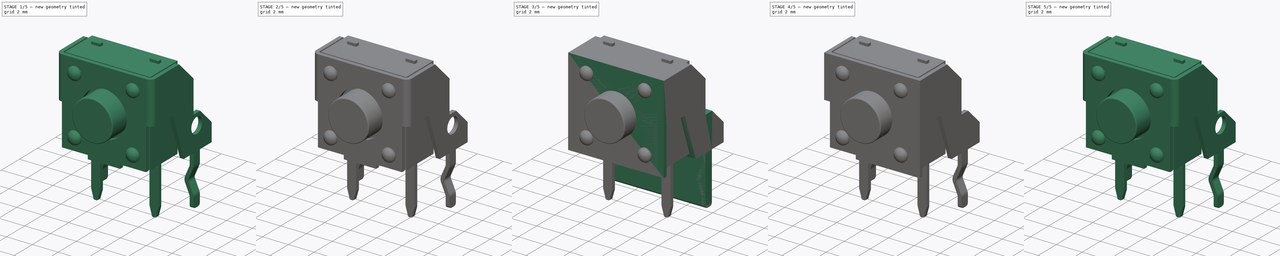
[diagram: build sequence overview — one tinted view per stage of 5, left to right]
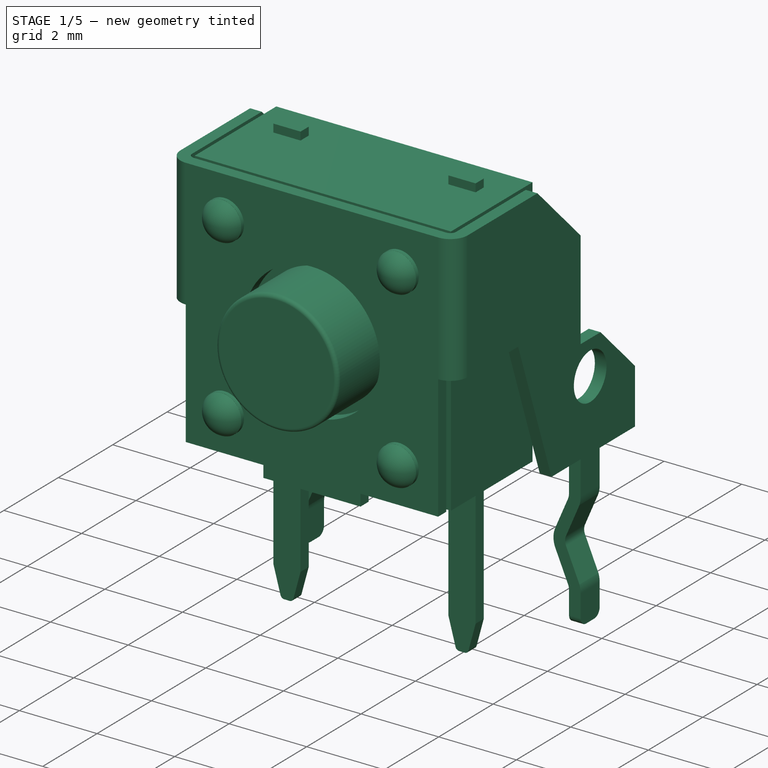
[diagram: stage 1 of 5 — iso view after this stage's code; geometry added in this stage tinted green]
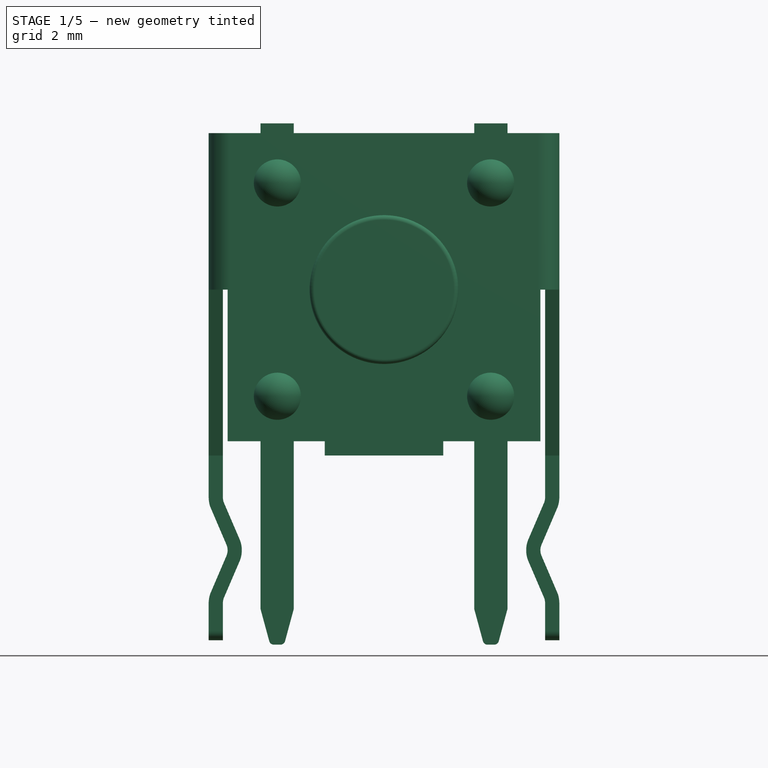
[diagram: stage 1 of 5 — front view after this stage's code; geometry added in this stage tinted green]
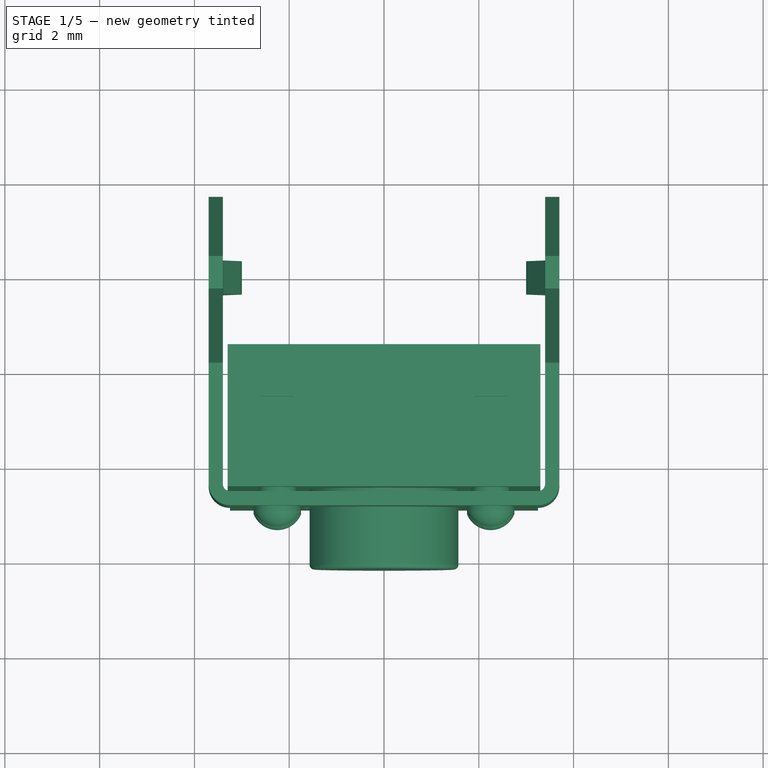
[diagram: stage 1 of 5 — top view after this stage's code; geometry added in this stage tinted green]
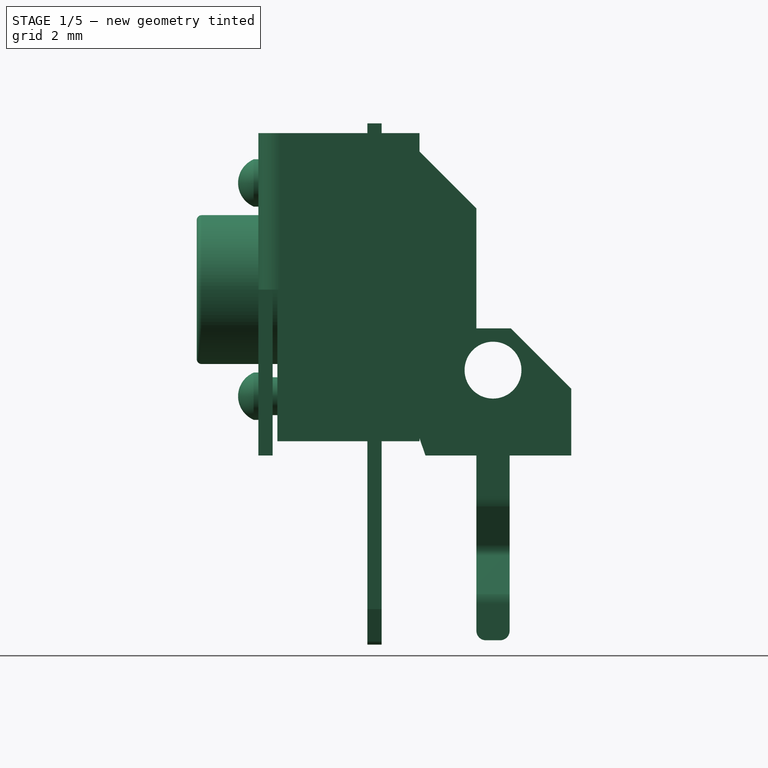
[diagram: stage 1 of 5 — right view after this stage's code; geometry added in this stage tinted green]
FCSTD DOCUMENT  (FreeCAD 0.14R3702 (Git))
Label: pushbutton-right-angle
License: CC-BY 3.0
LicenseURL: http://creativecommons.org/licenses/by/3.0/
objects: Sketcher::SketchObject×11, PartDesign::Pad×6, Part::Feature×6, PartDesign::Pocket×5, App::DocumentObjectGroup×3, Part::MultiFuse×3, PartDesign::Mirrored×2, Part::Fillet×2, Part::Sphere×1, Part::Mirroring×1, Part::Compound×1
note: 49 computed .brp shape members not serialized (recipe doc carries the construction recipe); baked Part::Feature solids carry a one-line shape summary decoded from their .brp

FEATURE [App::DocumentObjectGroup] Group001  label="button-body-src"
  Group = -> [Fusion004,Pad001,Pad003]
FEATURE [Part::Feature] Fusion005  label="button-body001"
  shape: bbox 6.6 x 4.7 x 6.5 mm, 29 faces (baked)
FEATURE [Sketcher::SketchObject] Sketch010  label="front-pin-sketch"
  Placement = pos=(0,-2.35,0) rot=(-1,0,0;4.71239rad)
  sketch-geometry (10):
    g0: LineSegment StartX=-2.60455 StartY=7.00761 StartZ=0 EndX=-1.90455 EndY=7.00761 EndZ=0
    g1: LineSegment StartX=-1.90455 StartY=7.00761 StartZ=0 EndX=-1.90455 EndY=-3.24239 EndZ=0
    g2: LineSegment StartX=-2.60455 StartY=-3.24239 StartZ=0 EndX=-2.60455 EndY=7.00761 EndZ=0
    g3: LineSegment StartX=-2.60455 StartY=-3.24239 StartZ=0 EndX=-2.42106 EndY=-3.91858 EndZ=0
    g4: LineSegment StartX=-2.32455 StartY=-3.99239 StartZ=0 EndX=-2.18455 EndY=-3.99239 EndZ=0
    g5: LineSegment StartX=-2.08804 StartY=-3.91858 StartZ=0 EndX=-1.90455 EndY=-3.24239 EndZ=0
    g6: LineSegment [constr] StartX=-2.60455 StartY=-3.24239 StartZ=0 EndX=-1.90455 EndY=-3.24239 EndZ=0
    g7: LineSegment [constr] StartX=-2.25455 StartY=7.00761 StartZ=0 EndX=-2.25455 EndY=-3.24239 EndZ=0
    g8: ArcOfCircle CenterX=-2.32455 CenterY=-3.89239 CenterZ=0 NormalX=0 NormalY=0 NormalZ=1 Radius=0.1 StartAngle=3.40657 EndAngle=4.71239
    g9: ArcOfCircle CenterX=-2.18455 CenterY=-3.89239 CenterZ=0 NormalX=0 NormalY=0 NormalZ=1 Radius=0.1 StartAngle=4.71239 EndAngle=6.01821
  constraints (25):
    c: Coincident(g0,g1)
    c: Coincident(g2,g0)
    c: Horizontal(g0)
    c: Vertical(g1)
    c: Vertical(g2)
    c: DistanceX(g0) = 0.7
    c: DistanceY(g1) = -10.25
    c: Coincident(g5,g1)
    c: Coincident(g3,g2)
    c: Horizontal(g4)
    c: Horizontal(g6)
    c: Coincident(g2,g6)
    c: Coincident(g6,g1)
    c: PointOnObject(g7,g0)
    c: PointOnObject(g7,g6)
    c: Symmetric(g0,g0,g7)
    c: Tangent(g3,g8)
    c: Tangent(g4,g8)
    c: Radius(g8) = 0.1
    c: Tangent(g4,g9)
    c: Tangent(g5,g9)
    c: Equal(g9,g8)
    c: DistanceX(g4) = 0.14
    c: Symmetric(g4,g4,g7)
    c: DistanceY(g4,g1) = 0.75
FEATURE [PartDesign::Pad] Pad005  label="font-left-pin"
  Length = 0.3
  Length2 = 100
  Placement = pos=(0,-2.35,0) rot=(-1,0,0;4.71239rad)
  Sketch = -> Sketch010
  Type = 0
FEATURE [Part::Mirroring] Part__Mirroring  label="font-left-pin (Mirror #1)"
  Base = (0,0,0)
  Normal = (1,0,0)
  Source = -> Pad005
FEATURE [Part::MultiFuse] Fusion006  label="front-pins"
  Shapes = -> [Part__Mirroring,Pad005]
FEATURE [App::DocumentObjectGroup] Group002  label="pins-src"
  Group = -> [Part__Mirroring,Fusion006]
FEATURE [Part::Feature] Fusion007  label="front-pins001"
  shape: bbox 5.209 x 0.3 x 11 mm, 20 faces, 2 solids (baked)
FEATURE [Part::Compound] Compound  label="pushbutton-right-angle"
  Links = -> [Pocket004001,Fusion005,Fusion007]
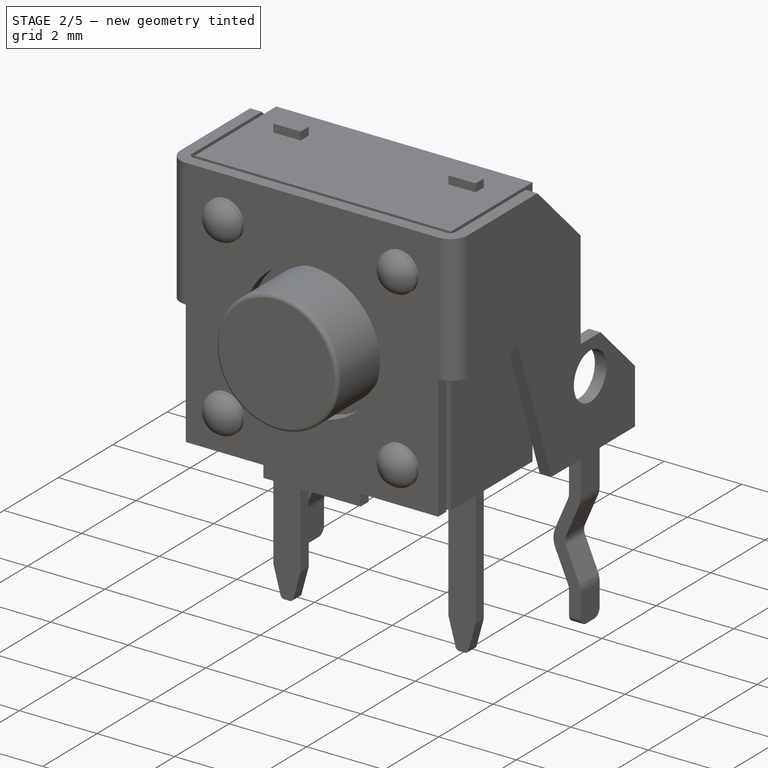
[diagram: stage 2 of 5 — iso view after this stage's code; geometry added in this stage tinted green]
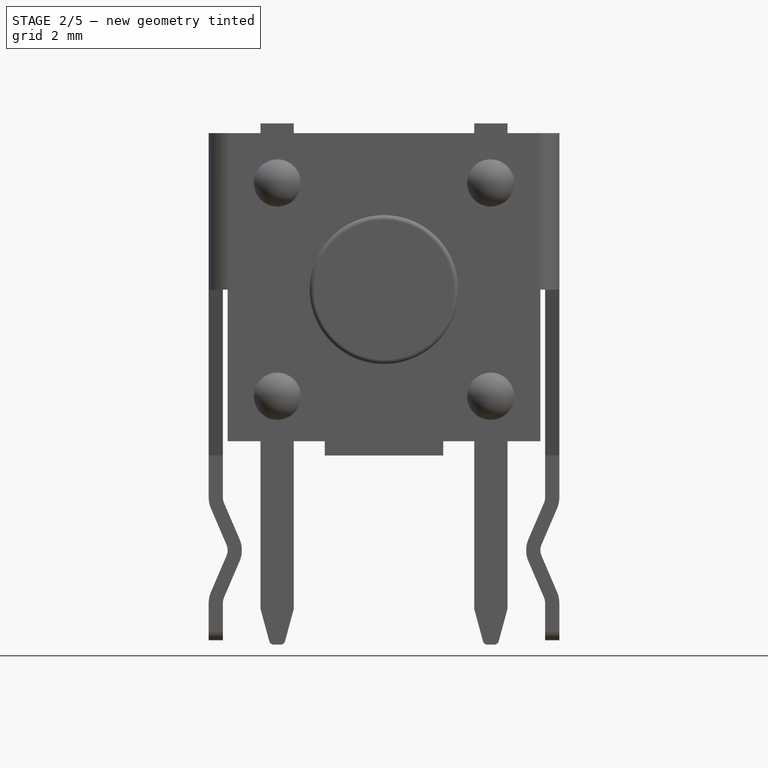
[diagram: stage 2 of 5 — front view after this stage's code; geometry added in this stage tinted green]
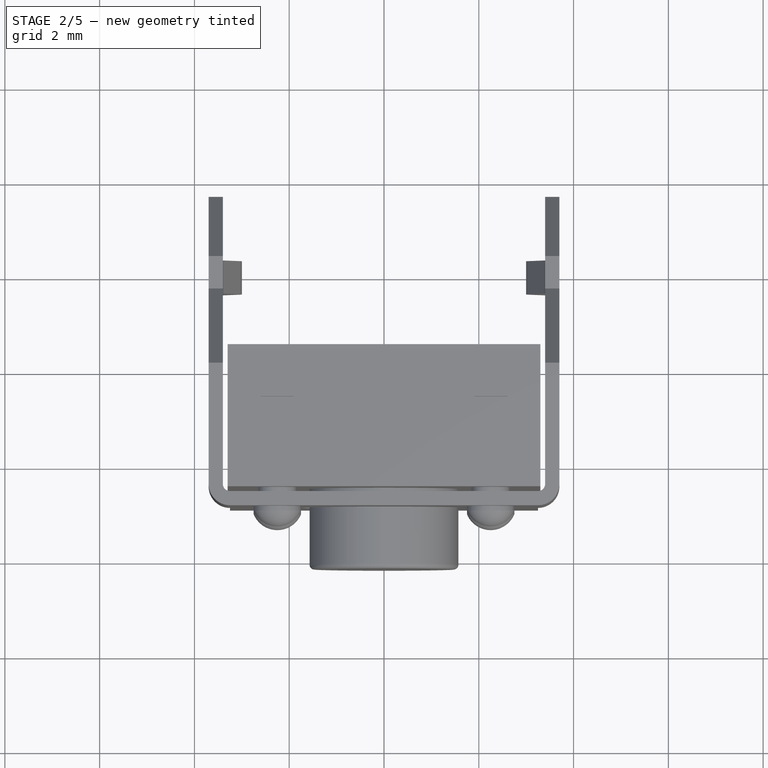
[diagram: stage 2 of 5 — top view after this stage's code; geometry added in this stage tinted green]
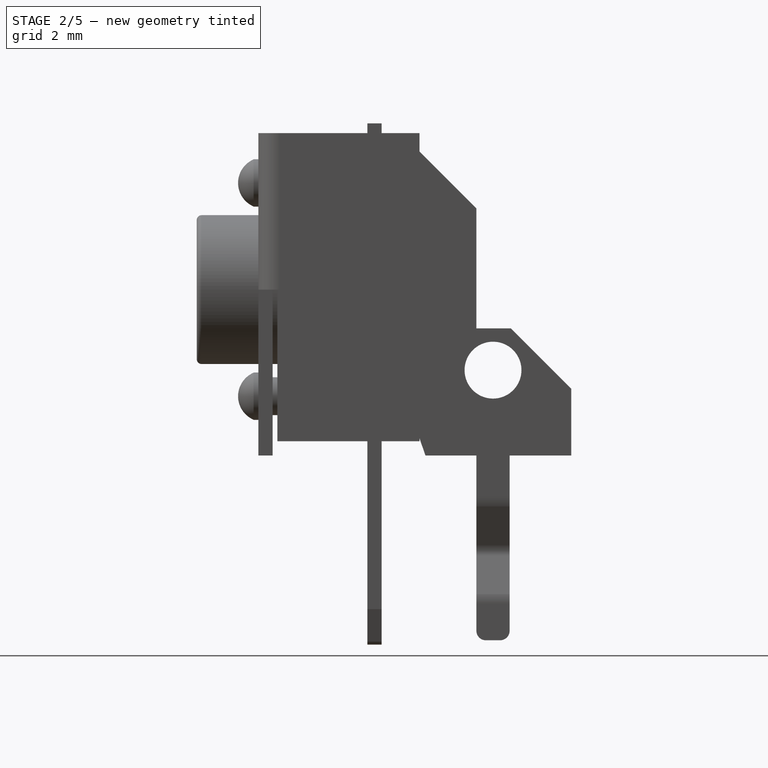
[diagram: stage 2 of 5 — right view after this stage's code; geometry added in this stage tinted green]
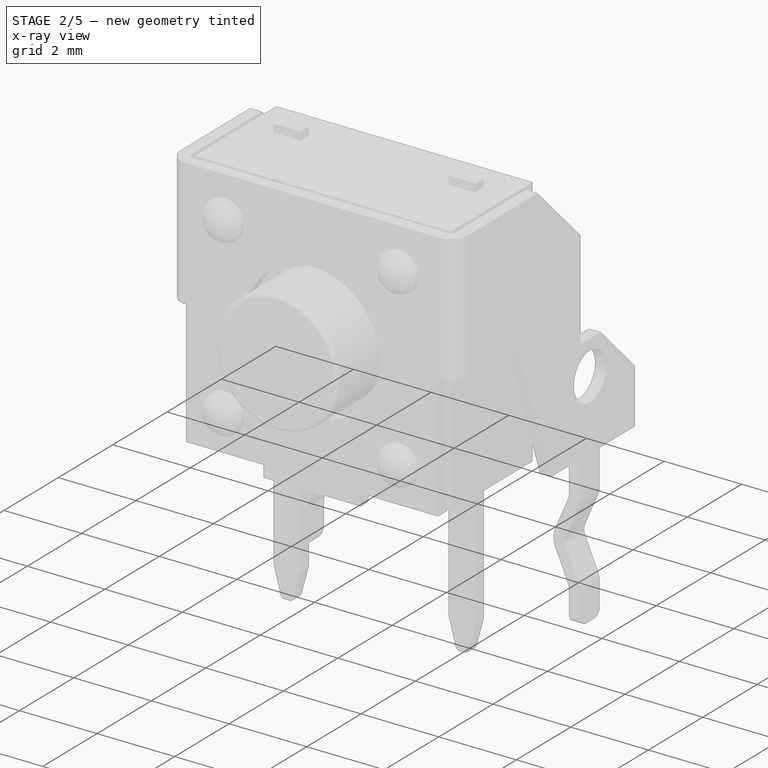
[diagram: stage 2 of 5 — x-ray composite at the iso view; earlier geometry ghosted, this stage's added geometry solid]
FEATURE [Sketcher::SketchObject] Sketch008  label="pin-A-sketch"
  Placement = pos=(0,0,0) rot=(-1,0,0;4.71239rad)
  sketch-geometry (1):
    g0: Circle CenterX=0 CenterY=0 CenterZ=0 NormalX=0 NormalY=0 NormalZ=1 Radius=0.4
  constraints (2):
    c: Coincident(g0,g-1)
    c: Radius(g0) = 0.4
FEATURE [PartDesign::Pad] Pad003  label="pin-A"
  Length = 0.1
  Length2 = 100
  Placement = pos=(0,0,0) rot=(-1,0,0;4.71239rad)
  Sketch = -> Sketch008
  Type = 0
FEATURE [Sketcher::SketchObject] Sketch009  label="pin-B-sketch"
  Placement = pos=(0,-0.1,0) rot=(1,0,0;1.5708rad)
  Support = -> Pad003 [Face3]
  sketch-geometry (1):
    g0: Circle CenterX=0 CenterY=0 CenterZ=0 NormalX=0 NormalY=0 NormalZ=1 Radius=0.5
  constraints (2):
    c: Coincident(g-1,g0)
    c: Radius(g0) = 0.5
FEATURE [PartDesign::Pad] Pad004  label="pin-B"
  Length = 0.4
  Length2 = 100
  Placement = pos=(0,0,0) rot=(-1,0,0;4.71239rad)
  Sketch = -> Sketch009
  Type = 0
FEATURE [Part::Sphere] Sphere
  Angle1 = 23
  Angle2 = 90
  Angle3 = 360
  Placement = pos=(0,-0.289005,0) rot=(1,0,0;1.5708rad)
  Radius = 0.54
FEATURE [Part::MultiFuse] Fusion  label="pin"
  Placement = pos=(2.25,-4.55,1.25) rot=(0,0,1;0rad)
  Shapes = -> [Pad004,Sphere]
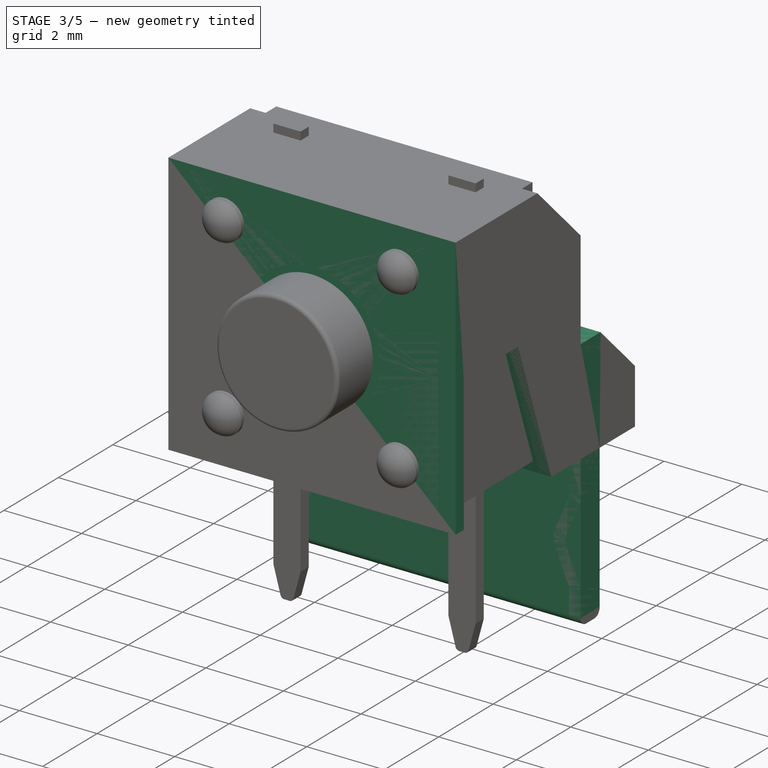
[diagram: stage 3 of 5 — iso view after this stage's code; geometry added in this stage tinted green]
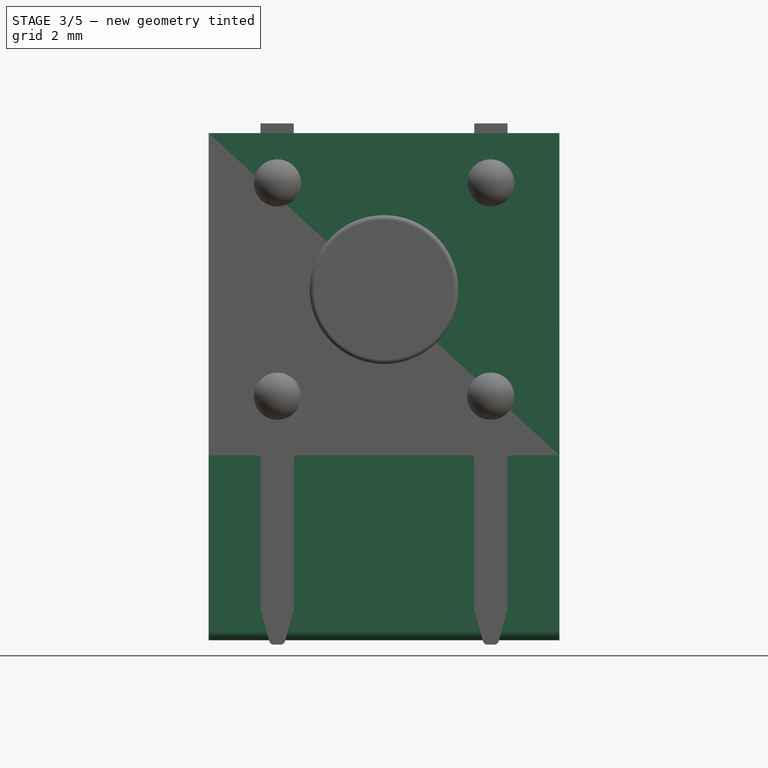
[diagram: stage 3 of 5 — front view after this stage's code; geometry added in this stage tinted green]
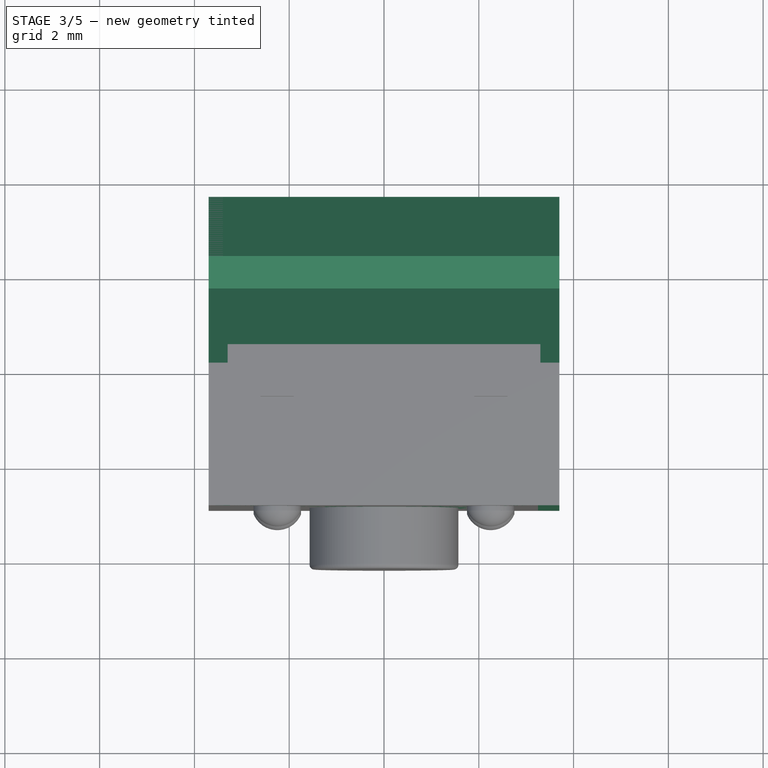
[diagram: stage 3 of 5 — top view after this stage's code; geometry added in this stage tinted green]
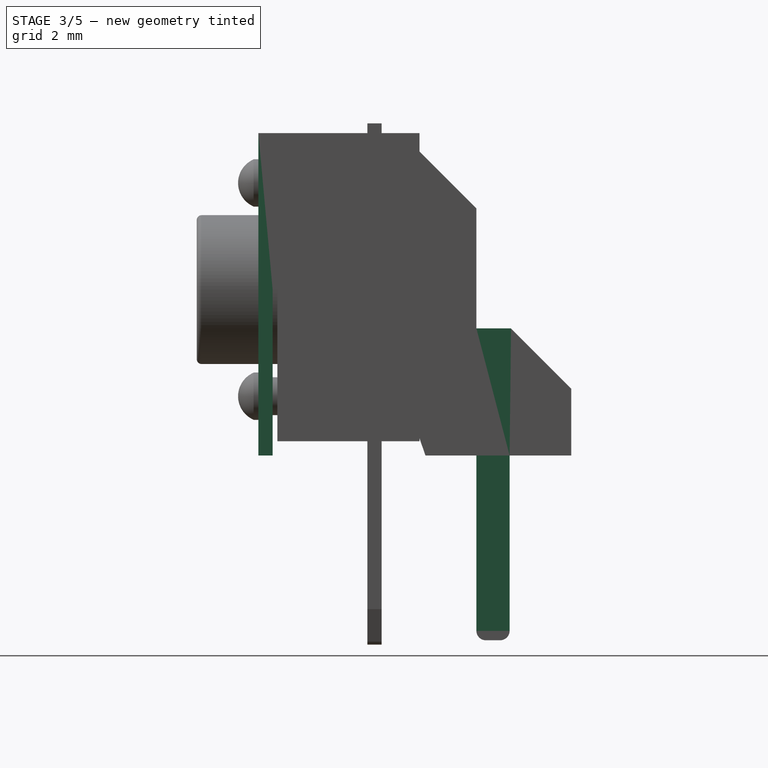
[diagram: stage 3 of 5 — right view after this stage's code; geometry added in this stage tinted green]
FEATURE [Sketcher::SketchObject] Sketch  label="metalic-cover-main-sketch"
  Placement = pos=(0,0,0) rot=(0.57735,0.57735,0.57735;2.0944rad)
  sketch-geometry (22):
    g0: LineSegment StartX=-4.95 StartY=0 StartZ=0 EndX=-4.95 EndY=6.8 EndZ=0
    g1: LineSegment StartX=-4.95 StartY=6.8 StartZ=0 EndX=-1.94 EndY=6.8 EndZ=0
    g2: LineSegment StartX=-1.94 StartY=6.8 StartZ=0 EndX=-0.35 EndY=5.21 EndZ=0
    g3: LineSegment StartX=-0.35 StartY=5.21 StartZ=0 EndX=-0.35 EndY=2.68 EndZ=0
    g4: LineSegment StartX=-0.35 StartY=2.68 StartZ=0 EndX=0.38 EndY=2.68 EndZ=0
    g5: LineSegment StartX=0.38 StartY=2.68 StartZ=0 EndX=1.65 EndY=1.41 EndZ=0
    g6: LineSegment StartX=1.65 StartY=1.41 StartZ=0 EndX=1.65 EndY=0 EndZ=0
    g7: LineSegment StartX=1.65 StartY=0 StartZ=0 EndX=0.35 EndY=0 EndZ=0
    g8: LineSegment StartX=0.35 StartY=0 StartZ=0 EndX=0.35 EndY=-3.7 EndZ=0
    g9: LineSegment StartX=0.15 StartY=-3.9 StartZ=0 EndX=-0.15 EndY=-3.9 EndZ=0
    g10: LineSegment StartX=-0.35 StartY=-3.7 StartZ=0 EndX=-0.35 EndY=0 EndZ=0
    g11: LineSegment StartX=-0.35 StartY=0 StartZ=0 EndX=-1.425 EndY=0 EndZ=0
    g12: LineSegment StartX=-1.425 StartY=0 StartZ=0 EndX=-2.65 EndY=3.5 EndZ=0
    g13: LineSegment StartX=-2.65 StartY=3.5 StartZ=0 EndX=-4.65 EndY=3.5 EndZ=0
    g14: LineSegment StartX=-4.65 StartY=3.5 StartZ=0 EndX=-4.65 EndY=0 EndZ=0
    g15: LineSegment StartX=-4.65 StartY=0 StartZ=0 EndX=-4.95 EndY=0 EndZ=0
    g16: LineSegment [constr] StartX=-1.94 StartY=5.21 StartZ=0 EndX=-0.35 EndY=5.21 EndZ=0
    g17: LineSegment [constr] StartX=-1.94 StartY=6.8 StartZ=0 EndX=-1.94 EndY=5.21 EndZ=0
    g18: LineSegment [constr] StartX=0.38 StartY=2.68 StartZ=0 EndX=0.38 EndY=1.41 EndZ=0
    g19: LineSegment [constr] StartX=0.38 StartY=1.41 StartZ=0 EndX=1.65 EndY=1.41 EndZ=0
    g20: ArcOfCircle CenterX=0.15 CenterY=-3.7 CenterZ=0 NormalX=0 NormalY=0 NormalZ=1 Radius=0.2 StartAngle=4.71239 EndAngle=6.28319
    g21: ArcOfCircle CenterX=-0.15 CenterY=-3.7 CenterZ=0 NormalX=0 NormalY=0 NormalZ=1 Radius=0.2 StartAngle=3.14159 EndAngle=4.71239
  constraints (61):
    c: Coincident(g0,g1)
    c: Horizontal(g1)
    c: Coincident(g1,g2)
    c: Coincident(g2,g3)
    c: Vertical(g3)
    c: Coincident(g3,g4)
    c: Horizontal(g4)
    c: Coincident(g4,g5)
    c: Coincident(g5,g6)
    c: Coincident(g6,g7)
    c: Horizontal(g7)
    c: Coincident(g7,g8)
    c: Vertical(g8)
    c: Horizontal(g9)
    c: Vertical(g10)
    c: Coincident(g10,g11)
    c: Horizontal(g11)
    c: Coincident(g11,g12)
    c: Coincident(g12,g13)
    c: Horizontal(g13)
    c: Coincident(g13,g14)
    c: Vertical(g14)
    c: Coincident(g14,g15)
    c: Coincident(g15,g0)
    c: Vertical(g0)
    c: Horizontal(g15)
    c: Vertical(g6)
    c: PointOnObject(g10,g-1)
    c: PointOnObject(g14,g-1)
    c: DistanceY(g0) = 6.8
    c: Horizontal(g16)
    c: Coincident(g16,g2)
    c: Vertical(g17)
    c: Coincident(g17,g16)
    c: Coincident(g17,g1)
    c: Equal(g16,g17)
    c: DistanceX(g0,g2) = 4.6
    c: DistanceX(g15) = -0.3
    c: DistanceX(g13) = -2
    c: DistanceX(g11) = -1.075
    c: DistanceX(g11,g12) = -1.225
    c: DistanceY(g11,g12) = 3.5
    c: Symmetric(g10,g7,g-2)
    c: DistanceX(g10,g7) = 0.7
    c: DistanceX(g7) = -1.3
    c: DistanceX(g16) = 1.59
    c: DistanceY(g3) = -2.53
    c: DistanceX(g4) = 0.73
    c: Vertical(g18)
    c: Coincident(g18,g4)
    c: Horizontal(g19)
    c: Coincident(g19,g18)
    c: Coincident(g19,g5)
    c: Equal(g18,g19)
    c: Tangent(g8,g20)
    c: Tangent(g9,g20)
    c: Tangent(g9,g21)
    c: Tangent(g10,g21)
    c: Equal(g20,g21)
    c: DistanceY(g9,g7) = 3.9
    c: Radius(g20) = 0.2
FEATURE [PartDesign::Pad] Pad  label="metalic-cover-main"
  Length = 7.4
  Length2 = 100
  Midplane = true
  Placement = pos=(0,0,0) rot=(0.57735,0.57735,0.57735;2.0944rad)
  Sketch = -> Sketch
  Type = 0
FEATURE [App::DocumentObjectGroup] Group  label="metal-cover-src"
  Group = -> [Pad,Pocket,Pocket001,Mirrored,Pocket002,Mirrored001,Fillet,Pocket004]
FEATURE [Part::Feature] Pocket004001  label="metal-cover"
  shape: bbox 7.4 x 6.6 x 10.7 mm, 73 faces (baked)
FEATURE [Sketcher::SketchObject] Sketch006  label="main-body-sketch"
  Placement = pos=(0,-1.55,0) rot=(-1,0,0;4.71239rad)
  sketch-geometry (4):
    g0: LineSegment StartX=-3.3 StartY=0.3 StartZ=0 EndX=3.3 EndY=0.3 EndZ=0
    g1: LineSegment StartX=3.3 StartY=0.3 StartZ=0 EndX=3.3 EndY=6.8 EndZ=0
    g2: LineSegment StartX=3.3 StartY=6.8 StartZ=0 EndX=-3.3 EndY=6.8 EndZ=0
    g3: LineSegment StartX=-3.3 StartY=6.8 StartZ=0 EndX=-3.3 EndY=0.3 EndZ=0
  constraints (12):
    c: Coincident(g0,g1)
    c: Coincident(g1,g2)
    c: Coincident(g2,g3)
    c: Coincident(g3,g0)
    c: Horizontal(g0)
    c: Horizontal(g2)
    c: Vertical(g1)
    c: Vertical(g3)
    c: Symmetric(g0,g0,g-2)
    c: DistanceX(g0) = 6.6
    c: DistanceY(g1) = 6.5
    c: DistanceY(g-1,g0) = 0.3
FEATURE [PartDesign::Pad] Pad001  label="main-body"
  Length = 3
  Length2 = 100
  Placement = pos=(0,-1.55,0) rot=(-1,0,0;4.71239rad)
  Sketch = -> Sketch006
  Type = 0
FEATURE [Sketcher::SketchObject] Sketch007  label="button-sketch"
  Placement = pos=(0,-4.55,0) rot=(1,0,0;1.5708rad)
  Support = -> Pad001 [Face6]
  sketch-geometry (1):
    g0: Circle CenterX=0 CenterY=3.5 CenterZ=0 NormalX=0 NormalY=0 NormalZ=1 Radius=1.57
  constraints (3):
    c: PointOnObject(g0,g-2)
    c: Radius(g0) = 1.57
    c: DistanceY(g-1,g0) = 3.5
FEATURE [PartDesign::Pad] Pad002  label="button"
  Length = 1.7
  Length2 = 100
  Placement = pos=(0,-1.55,0) rot=(-1,0,0;4.71239rad)
  Sketch = -> Sketch007
  Type = 0
FEATURE [Part::Fillet] Fillet001
  Base = -> Pad002
  Edges = 1 edges r=0.1: [Edge15]
FEATURE [Part::Feature] Fusion001  label="pin001"
  Placement = pos=(-2.25,-4.55,1.25) rot=(0,0,1;0rad)
  shape: bbox 1 x 0.829 x 1 mm, 6 faces (baked)
FEATURE [Part::Feature] Fusion002  label="pin002"
  Placement = pos=(-2.25,-4.55,5.75) rot=(0,0,1;0rad)
  shape: bbox 1 x 0.829 x 1 mm, 6 faces (baked)
FEATURE [Part::Feature] Fusion003  label="pin003"
  Placement = pos=(2.25,-4.55,5.75) rot=(0,0,1;0rad)
  shape: bbox 1 x 0.829 x 1 mm, 6 faces (baked)
FEATURE [Part::MultiFuse] Fusion004  label="button-body"
  Shapes = -> [Fusion,Fusion001,Fusion002,Fusion003,Fillet001]
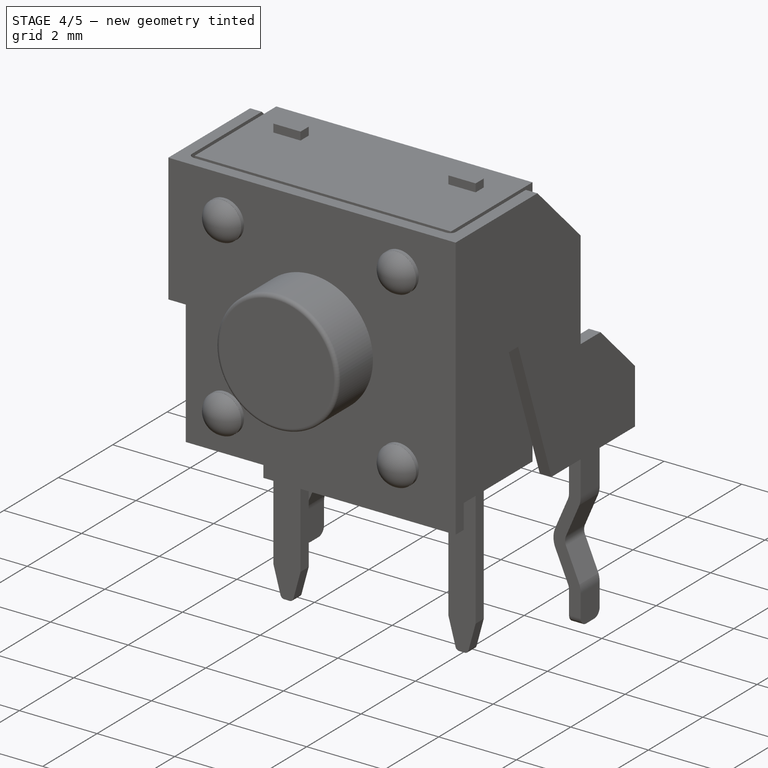
[diagram: stage 4 of 5 — iso view after this stage's code; geometry added in this stage tinted green]
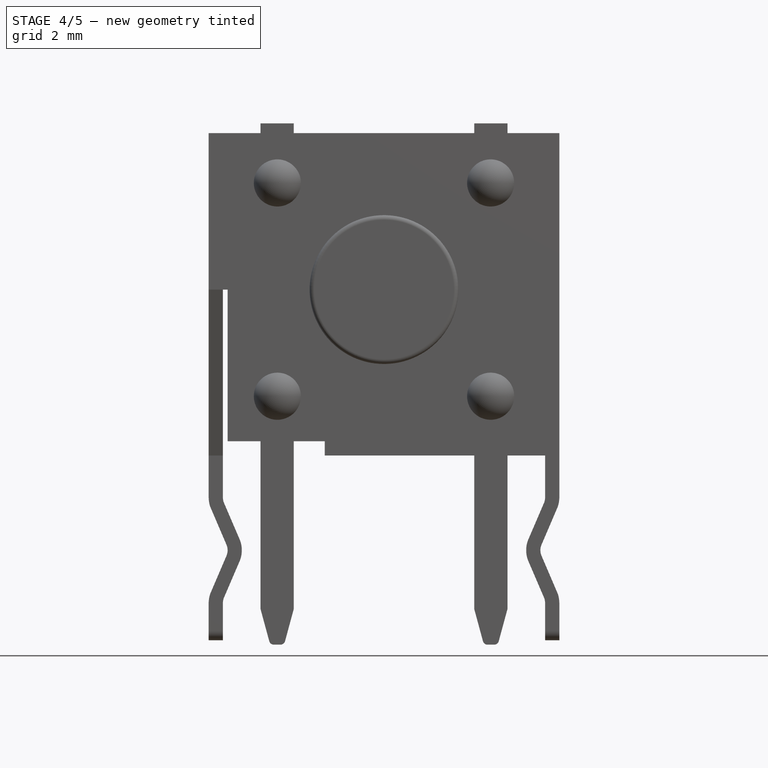
[diagram: stage 4 of 5 — front view after this stage's code; geometry added in this stage tinted green]
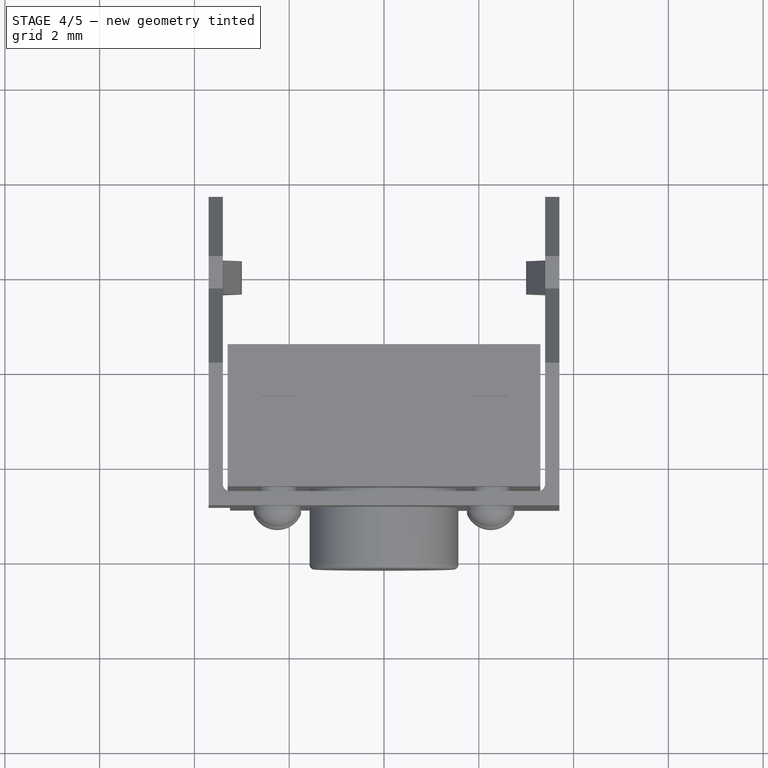
[diagram: stage 4 of 5 — top view after this stage's code; geometry added in this stage tinted green]
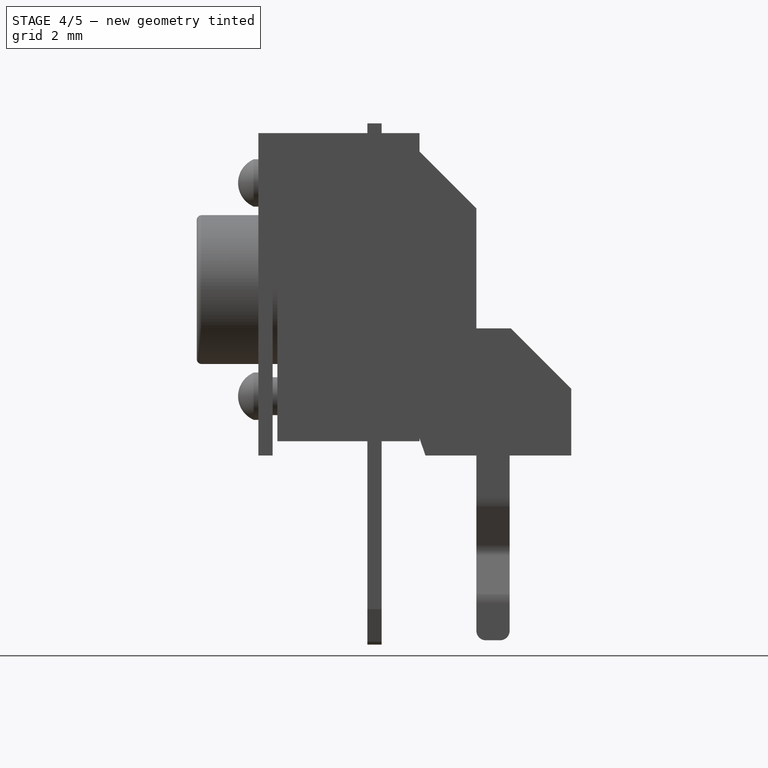
[diagram: stage 4 of 5 — right view after this stage's code; geometry added in this stage tinted green]
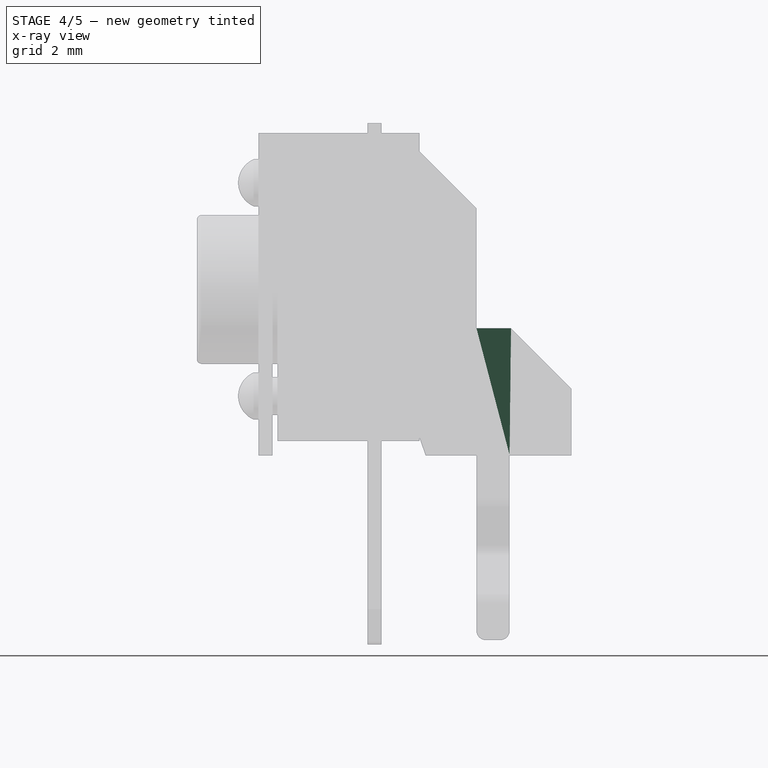
[diagram: stage 4 of 5 — x-ray composite at the right view; earlier geometry ghosted, this stage's added geometry solid]
FEATURE [Sketcher::SketchObject] Sketch001  label="metal-cover-top-cutout-1-sketch"
  ExternalGeometry = -> [Pad]
  Placement = pos=(0,0,6.8) rot=(0,0,-1;1.5708rad)
  Support = -> Pad [Face8]
  sketch-geometry (14):
    g0: LineSegment StartX=-2.38 StartY=-3.4 StartZ=0 EndX=-0.35 EndY=-3.4 EndZ=0
    g1: LineSegment StartX=4.65 StartY=-3.25 StartZ=0 EndX=4.65 EndY=3.25 EndZ=0
    g2: LineSegment StartX=4.5 StartY=3.4 StartZ=0 EndX=0.35 EndY=3.4 EndZ=0
    g3: LineSegment StartX=-2.38 StartY=3.4 StartZ=0 EndX=-2.38 EndY=-3.4 EndZ=0
    g4: ArcOfCircle CenterX=4.5 CenterY=3.25 CenterZ=0 NormalX=0 NormalY=0 NormalZ=1 Radius=0.15 StartAngle=0 EndAngle=1.5708
    g5: LineSegment StartX=0.35 StartY=3.4 StartZ=0 EndX=0.35 EndY=3 EndZ=0
    g6: LineSegment StartX=0.35 StartY=3 StartZ=0 EndX=-0.38 EndY=3 EndZ=0
    g7: LineSegment StartX=-0.38 StartY=3 StartZ=0 EndX=-0.38 EndY=3.4 EndZ=0
    g8: LineSegment StartX=-0.38 StartY=3.4 StartZ=0 EndX=-2.38 EndY=3.4 EndZ=0
    g9: ArcOfCircle CenterX=4.5 CenterY=-3.25 CenterZ=0 NormalX=0 NormalY=0 NormalZ=1 Radius=0.15 StartAngle=4.71239 EndAngle=6.28319
    g10: LineSegment StartX=-0.35 StartY=-3 StartZ=0 EndX=0.35 EndY=-3 EndZ=0
    g11: LineSegment StartX=0.35 StartY=-3 StartZ=0 EndX=0.35 EndY=-3.4 EndZ=0
    g12: LineSegment StartX=-0.35 StartY=-3.4 StartZ=0 EndX=-0.35 EndY=-3 EndZ=0
    g13: LineSegment StartX=0.35 StartY=-3.4 StartZ=0 EndX=4.5 EndY=-3.4 EndZ=0
  constraints (37):
    c: Coincident(g8,g3)
    c: Coincident(g3,g0)
    c: Horizontal(g0)
    c: Horizontal(g2)
    c: Vertical(g1)
    c: Vertical(g3)
    c: Symmetric(g0,g8,g-1)
    c: Tangent(g1,g4)
    c: Tangent(g2,g4)
    c: Radius(g4) = 0.15
    c: PointOnObject(g1,g-3)
    c: DistanceY(g2,g-3) = 0.3
    c: Coincident(g5,g6)
    c: Coincident(g6,g7)
    c: Horizontal(g6)
    c: Vertical(g5)
    c: Vertical(g7)
    c: Coincident(g2,g5)
    c: Coincident(g8,g7)
    c: Tangent(g2,g8)
    c: PointOnObject(g2,g-4)
    c: PointOnObject(g7,g-5)
    c: DistanceY(g2,g5) = -0.4
    c: DistanceX(g8) = -2
    c: Tangent(g13,g9)
    c: Tangent(g1,g9)
    c: Equal(g9,g4)
    c: Coincident(g10,g11)
    c: Coincident(g12,g10)
    c: Horizontal(g10)
    c: Vertical(g11)
    c: Vertical(g12)
    c: Symmetric(g10,g5,g-1)
    c: Coincident(g0,g12)
    c: Coincident(g13,g11)
    c: Tangent(g0,g13)
    c: Symmetric(g10,g10,g-2)
FEATURE [PartDesign::Pocket] Pocket  label="metal-cover-top-cutout-1"
  Length = 5
  Placement = pos=(0,0,0) rot=(0.57735,0.57735,0.57735;2.0944rad)
  Sketch = -> Sketch001
  Type = 1
FEATURE [Sketcher::SketchObject] Sketch002  label="metal-cover-pins-cutout-2-sketch"
  ExternalGeometry = -> [Pocket]
  Placement = pos=(0,0.35,0) rot=(0.57735,0.57735,0.57735;4.18879rad)
  Support = -> Pocket [Face33]
  sketch-geometry (25):
    g0: LineSegment StartX=-4.2 StartY=3.4 StartZ=0 EndX=-3.13 EndY=3.4 EndZ=0
    g1: LineSegment [constr] StartX=2.68 StartY=3 StartZ=0 EndX=-4.2 EndY=3 EndZ=0
    g2: LineSegment StartX=-4.2 StartY=3 StartZ=0 EndX=-4.2 EndY=3.4 EndZ=0
    g3: ArcOfCircle CenterX=-3.13 CenterY=3 CenterZ=0 NormalX=0 NormalY=0 NormalZ=1 Radius=0.4 StartAngle=1.27409 EndAngle=1.5708
    g4: LineSegment [constr] StartX=-3.13 StartY=3.4 StartZ=0 EndX=-3.13 EndY=3 EndZ=0
    g5: ArcOfCircle CenterX=-2 CenterY=3.6 CenterZ=0 NormalX=0 NormalY=0 NormalZ=1 Radius=0.6 StartAngle=4.29351 EndAngle=5.13127
    g6: LineSegment [constr] StartX=-2 StartY=3.6 StartZ=0 EndX=-2 EndY=3 EndZ=0
    g7: LineSegment StartX=-3.01305 StartY=3.38252 StartZ=0 EndX=-2.24404 EndY=3.05187 EndZ=0
    g8: LineSegment [constr] StartX=-2 StartY=3.6 StartZ=0 EndX=-2.24404 EndY=3.05187 EndZ=0
    g9: LineSegment [constr] StartX=-3.01305 StartY=3.38252 StartZ=0 EndX=-3.13 EndY=3 EndZ=0
    g10: ArcOfCircle CenterX=-0.87 CenterY=3 CenterZ=0 NormalX=0 NormalY=0 NormalZ=1 Radius=0.4 StartAngle=1.5708 EndAngle=1.8675
    g11: LineSegment StartX=-1.75596 StartY=3.05187 StartZ=0 EndX=-0.986949 EndY=3.38252 EndZ=0
    g12: LineSegment StartX=-0.87 StartY=3.4 StartZ=0 EndX=2.68 EndY=3.4 EndZ=0
    g13: LineSegment StartX=2.98 StartY=2.7 StartZ=0 EndX=-4.2 EndY=2.7 EndZ=0
    g14: LineSegment StartX=-4.2 StartY=2.7 StartZ=0 EndX=-4.2 EndY=3 EndZ=0
    g15: LineSegment StartX=2.68 StartY=3.4 StartZ=0 EndX=2.98 EndY=3.4 EndZ=0
    g16: LineSegment StartX=2.98 StartY=3.4 StartZ=0 EndX=2.98 EndY=2.7 EndZ=0
    g17: ArcOfCircle CenterX=-3.13 CenterY=3 CenterZ=0 NormalX=0 NormalY=0 NormalZ=1 Radius=0.7 StartAngle=1.27409 EndAngle=1.5708
    g18: ArcOfCircle CenterX=-2 CenterY=3.6 CenterZ=0 NormalX=0 NormalY=0 NormalZ=1 Radius=0.3 StartAngle=4.29351 EndAngle=5.13127
    g19: ArcOfCircle CenterX=-0.87 CenterY=3 CenterZ=0 NormalX=0 NormalY=0 NormalZ=1 Radius=0.7 StartAngle=1.5708 EndAngle=1.8675
    g20: LineSegment StartX=-2.92534 StartY=3.66941 StartZ=0 EndX=-2.12202 EndY=3.32594 EndZ=0
    g21: LineSegment StartX=-1.87798 StartY=3.32594 StartZ=0 EndX=-1.07466 EndY=3.66941 EndZ=0
    g22: LineSegment StartX=-3.13 StartY=3.9 StartZ=0 EndX=-0.87 EndY=3.9 EndZ=0
    g23: LineSegment StartX=-0.87 StartY=3.9 StartZ=0 EndX=-0.87 EndY=3.7 EndZ=0
    g24: LineSegment StartX=-3.13 StartY=3.7 StartZ=0 EndX=-3.13 EndY=3.9 EndZ=0
  constraints (70):
    c: Coincident(g1,g2)
    c: Coincident(g2,g0)
    c: Horizontal(g0)
    c: Horizontal(g1)
    c: Vertical(g2)
    c: PointOnObject(g3,g-3)
    c: Coincident(g3,g0)
    c: DistanceY(g-3,g0) = 0.4
    c: Vertical(g4)
    c: Coincident(g4,g3)
    c: Coincident(g0,g4)
    c: Radius(g5) = 0.6
    c: Vertical(g6)
    c: PointOnObject(g6,g-3)
    c: Coincident(g6,g5)
    c: Symmetric(g5,g5,g6)
    c: DistanceX(g-4,g5) = 1.7
    c: DistanceY(g-4,g5) = -0.1
    c: DistanceX(g0,g-4) = -0.57
    c: Coincident(g7,g5)
    c: Coincident(g8,g5)
    c: Coincident(g8,g5)
    c: Angle(g8,g6) = 0.418879
    c: Coincident(g9,g3)
    c: Coincident(g9,g3)
    c: Angle(g9,g4) = 0.296706
    c: Coincident(g7,g3)
    c: Symmetric(g10,g3,g6)
    c: Symmetric(g0,g10,g6)
    c: Symmetric(g10,g3,g6)
    c: Coincident(g11,g10)
    c: Coincident(g11,g5)
    c: Coincident(g12,g10)
    c: DistanceX(g-3,g0) = -0.5
    c: Coincident(g13,g14)
    c: Horizontal(g13)
    c: Vertical(g14)
    c: Coincident(g14,g1)
    c: DistanceY(g13,g1) = 0.3
    c: Coincident(g12,g-5)
    c: Coincident(g1,g-5)
    c: Coincident(g15,g16)
    c: Horizontal(g15)
    c: Vertical(g16)
    c: Coincident(g15,g12)
    c: Coincident(g13,g16)
    c: DistanceX(g12,g15) = 0.3
    c: Coincident(g17,g3)
    c: PointOnObject(g17,g-4)
    c: PointOnObject(g17,g4)
    c: PointOnObject(g17,g9)
    c: Coincident(g18,g5)
    c: Symmetric(g18,g18,g6)
    c: Radius(g18) = 0.3
    c: PointOnObject(g18,g8)
    c: Coincident(g19,g10)
    c: Symmetric(g19,g17,g6)
    c: Symmetric(g19,g17,g6)
    c: Coincident(g20,g18)
    c: Coincident(g20,g17)
    c: Coincident(g21,g18)
    c: Coincident(g21,g19)
    c: Coincident(g22,g23)
    c: Coincident(g24,g22)
    c: Horizontal(g22)
    c: Vertical(g23)
    c: Vertical(g24)
    c: Coincident(g23,g19)
    c: Coincident(g24,g17)
    c: DistanceY(g23) = -0.2
FEATURE [PartDesign::Pocket] Pocket001  label="metal-cover-pins-cutout-2"
  Length = 2
  Midplane = true
  Placement = pos=(0,0,0) rot=(0.57735,0.57735,0.57735;2.0944rad)
  Sketch = -> Sketch002
  Type = 0
FEATURE [PartDesign::Mirrored] Mirrored  label="metal-cover-pins-cutout-2-mirror"
  MirrorPlane = -> Sketch002 [H_Axis]
  Originals = -> [Pocket001]
  Placement = pos=(0,0,0) rot=(0.57735,0.57735,0.57735;2.0944rad)
FEATURE [Sketcher::SketchObject] Sketch003  label="metal-cover-cutout-3-sketch"
  ExternalGeometry = -> [Mirrored]
  Placement = pos=(0,-4.95,0) rot=(-0.57735,-0.57735,0.57735;4.18879rad)
  Support = -> Mirrored [Face26]
  sketch-geometry (11):
    g0: LineSegment StartX=0 StartY=-1.25 StartZ=0 EndX=-0.3 EndY=-1.25 EndZ=0
    g1: LineSegment StartX=-0.3 StartY=-1.25 StartZ=0 EndX=-0.3 EndY=-3.25 EndZ=0
    g2: LineSegment StartX=-0.3 StartY=-3.25 StartZ=0 EndX=-3.5 EndY=-3.25 EndZ=0
    g3: LineSegment StartX=-3.5 StartY=-3.25 StartZ=0 EndX=-3.5 EndY=-3.7 EndZ=0
    g4: LineSegment [constr] StartX=-3.5 StartY=-3.7 StartZ=0 EndX=0 EndY=-3.7 EndZ=0
    g5: LineSegment [constr] StartX=0 StartY=-3.7 StartZ=0 EndX=0 EndY=-1.25 EndZ=0
    g6: LineSegment StartX=-3.5 StartY=-3.7 StartZ=0 EndX=-3.5 EndY=-4.2 EndZ=0
    g7: LineSegment StartX=-3.5 StartY=-4.2 StartZ=0 EndX=0.5 EndY=-4.2 EndZ=0
    g8: LineSegment StartX=0.5 StartY=-4.2 StartZ=0 EndX=0.5 EndY=-1.25 EndZ=0
    g9: LineSegment StartX=0.5 StartY=-1.25 StartZ=0 EndX=0 EndY=-1.25 EndZ=0
    g10: LineSegment [constr] StartX=0 StartY=-3.7 StartZ=0 EndX=0.5 EndY=-4.2 EndZ=0
  constraints (29):
    c: Coincident(g0,g1)
    c: Coincident(g1,g2)
    c: Coincident(g2,g3)
    c: Coincident(g3,g4)
    c: Coincident(g4,g5)
    c: Coincident(g5,g0)
    c: Horizontal(g0)
    c: Vertical(g1)
    c: Horizontal(g2)
    c: Vertical(g3)
    c: Horizontal(g4)
    c: Vertical(g5)
    c: Coincident(g2,g-4)
    c: Coincident(g4,g-5)
    c: DistanceX(g0) = -0.3
    c: DistanceY(g0,g4) = -2.45
    c: Coincident(g6,g7)
    c: Coincident(g7,g8)
    c: Coincident(g8,g9)
    c: Horizontal(g9)
    c: Vertical(g8)
    c: Horizontal(g7)
    c: Vertical(g6)
    c: Coincident(g0,g9)
    c: Coincident(g6,g3)
    c: Coincident(g10,g4)
    c: Angle(g4,g10) = 2.35619
    c: Coincident(g7,g10)
    c: DistanceY(g7,g4) = 0.5
FEATURE [PartDesign::Pocket] Pocket002  label="metal-cover-cutout-3"
  Length = 1
  Placement = pos=(0,0,0) rot=(0.57735,0.57735,0.57735;2.0944rad)
  Sketch = -> Sketch003
  Type = 0
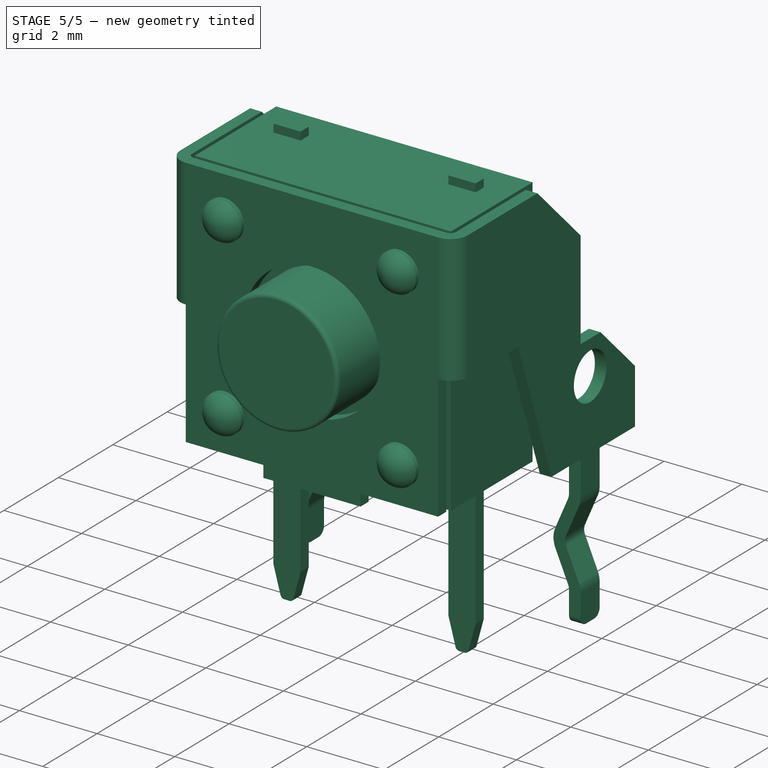
[diagram: stage 5 of 5 — iso view after this stage's code; geometry added in this stage tinted green]
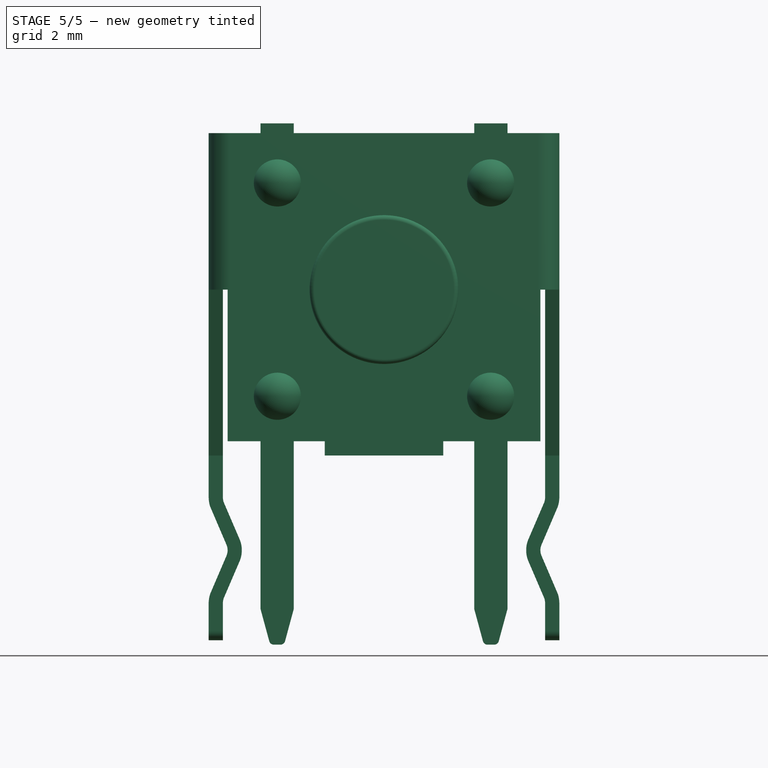
[diagram: stage 5 of 5 — front view after this stage's code; geometry added in this stage tinted green]
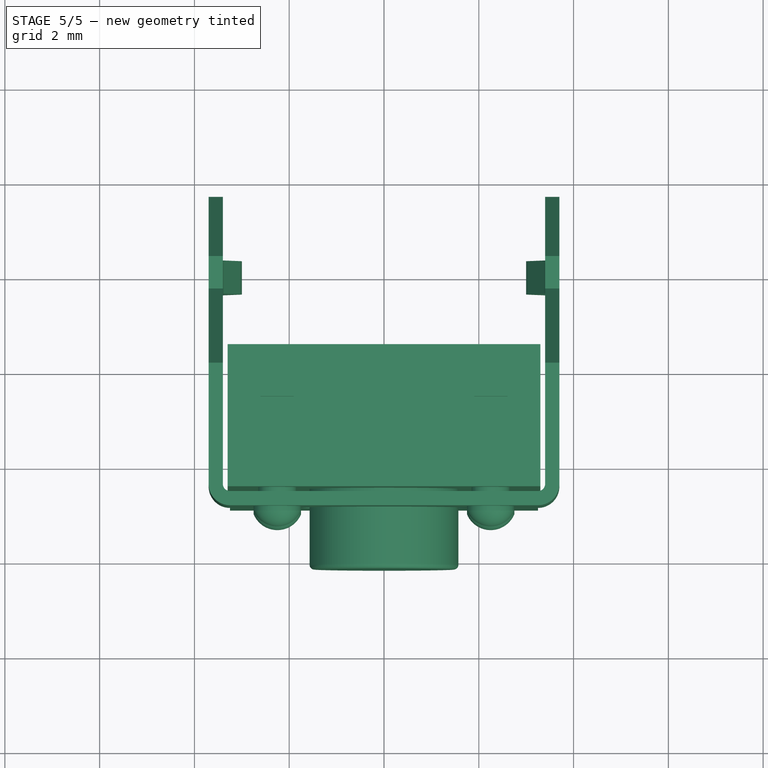
[diagram: stage 5 of 5 — top view after this stage's code; geometry added in this stage tinted green]
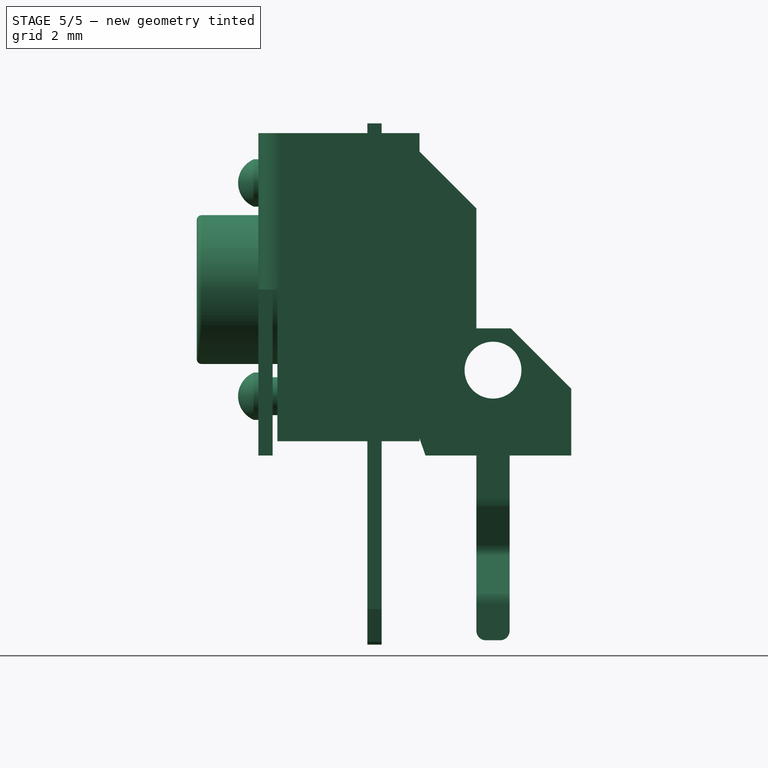
[diagram: stage 5 of 5 — right view after this stage's code; geometry added in this stage tinted green]
FEATURE [PartDesign::Mirrored] Mirrored001  label="metal-cover-cutout-3-mirror"
  MirrorPlane = -> Sketch003 [H_Axis]
  Originals = -> [Pocket002]
  Placement = pos=(0,0,0) rot=(0.57735,0.57735,0.57735;2.0944rad)
FEATURE [Sketcher::SketchObject] Sketch004  label="metal-cover-cutout-4-sketch"
  Placement = pos=(-3.7,0,0) rot=(0.57735,0.57735,-0.57735;4.18879rad)
  Support = -> Mirrored001 [Face9]
  sketch-geometry (1):
    g0: Circle CenterX=0 CenterY=-1.8 CenterZ=0 NormalX=0 NormalY=0 NormalZ=1 Radius=0.6
  constraints (3):
    c: PointOnObject(g0,g-2)
    c: DistanceY(g-1,g0) = -1.8
    c: Radius(g0) = 0.6
FEATURE [PartDesign::Pocket] Pocket003  label="metal-cover-cutout-4"
  Length = 5
  Placement = pos=(0,0,0) rot=(0.57735,0.57735,0.57735;2.0944rad)
  Sketch = -> Sketch004
  Type = 1
FEATURE [Part::Fillet] Fillet
  Base = -> Pocket003
  Edges = 2 edges r=0.45: [Edge56,Edge94]
FEATURE [Sketcher::SketchObject] Sketch005  label="button-hole-cutout-4-sketch"
  Placement = pos=(0,-4.95,0) rot=(1,0,0;1.5708rad)
  Support = -> Fillet [Face20]
  sketch-geometry (1):
    g0: Circle CenterX=0 CenterY=3.5 CenterZ=0 NormalX=0 NormalY=0 NormalZ=1 Radius=1.75
  constraints (3):
    c: PointOnObject(g0,g-2)
    c: Radius(g0) = 1.75
    c: DistanceY(g-1,g0) = 3.5
FEATURE [PartDesign::Pocket] Pocket004  label="button-hole-cutout-4"
  Length = 5
  Sketch = -> Sketch005
  Type = 1
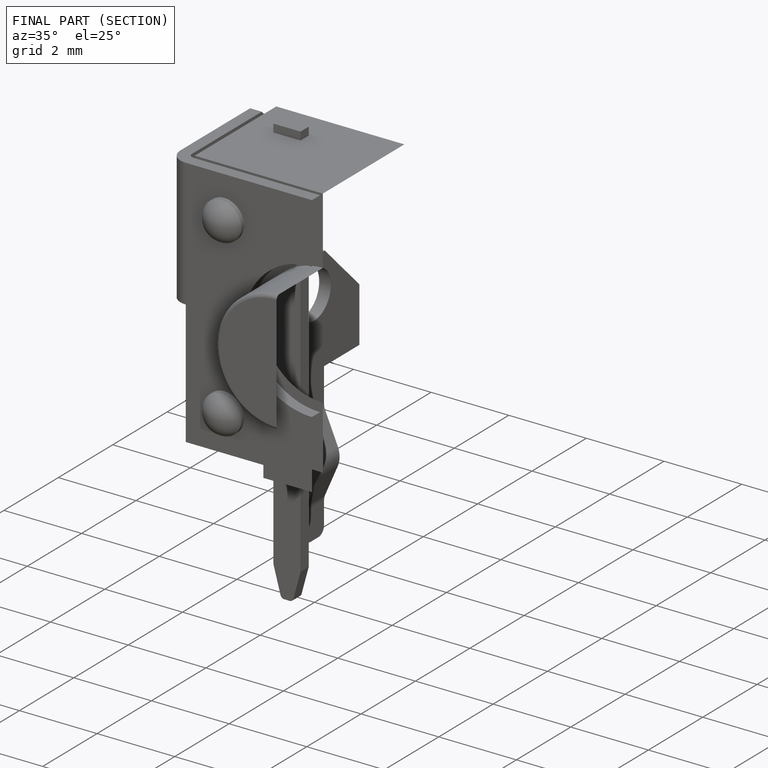
[diagram: finished part — half-section view (interior)]
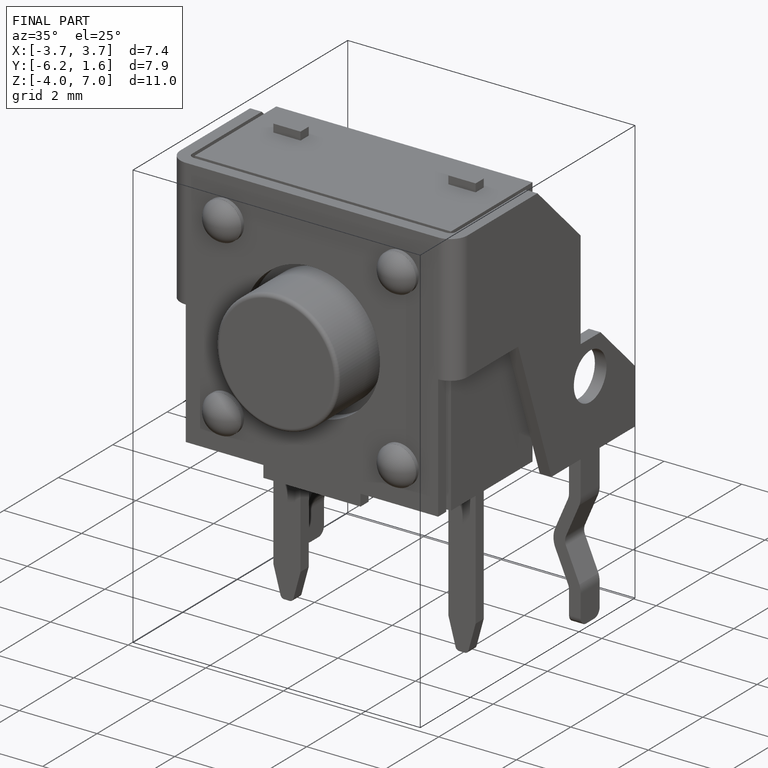
[diagram: finished part — iso view with bounding-box wireframe]
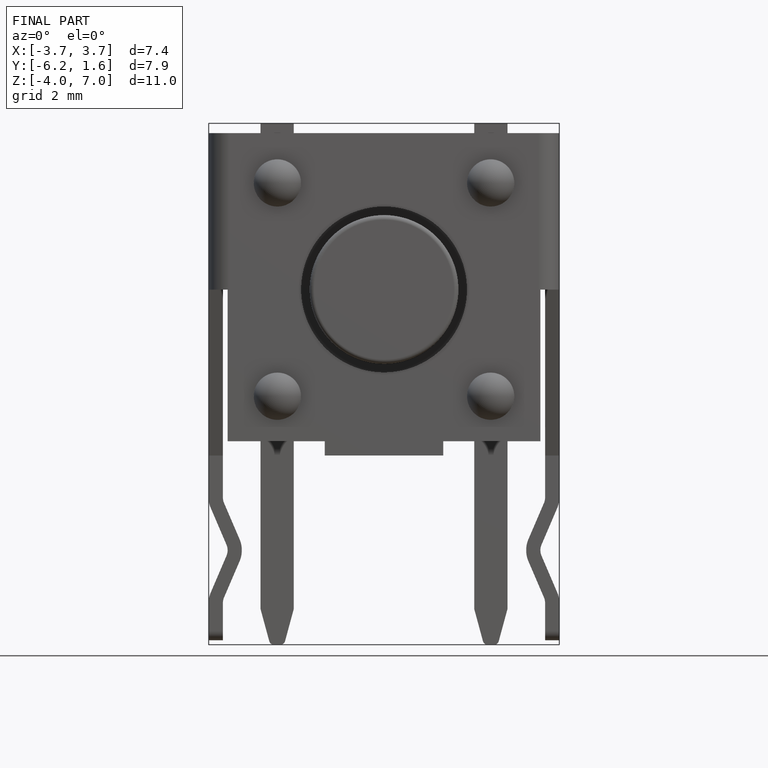
[diagram: finished part — front view with bounding-box wireframe]
